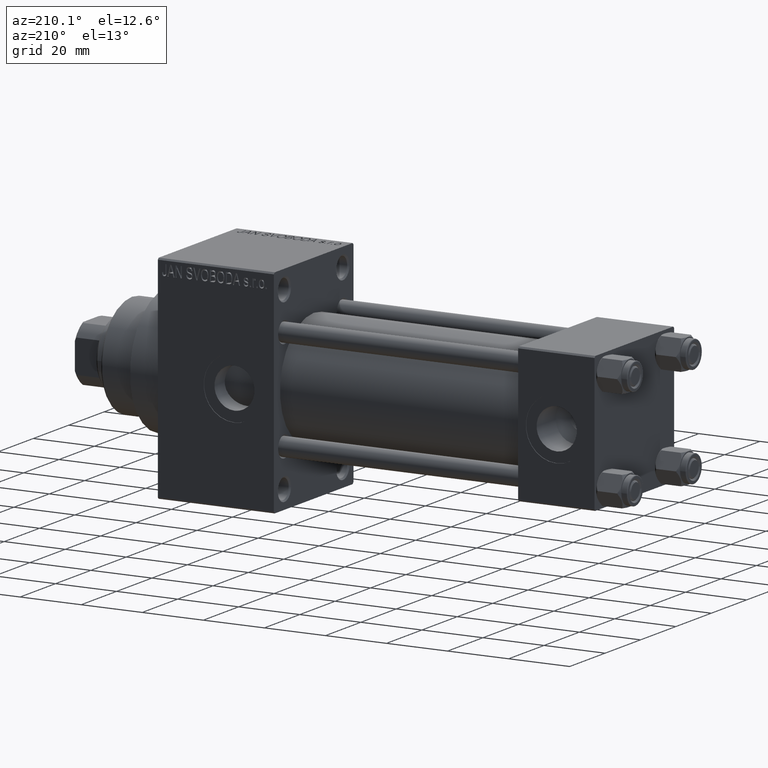
[diagram: clean part render]
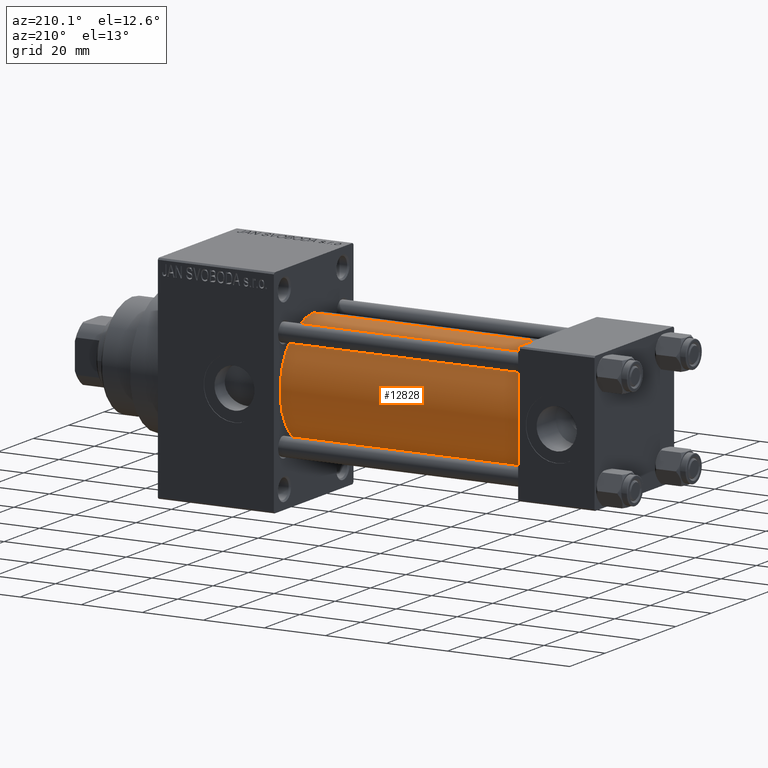
[diagram: same view with one face highlighted and labeled with its STEP entity id]
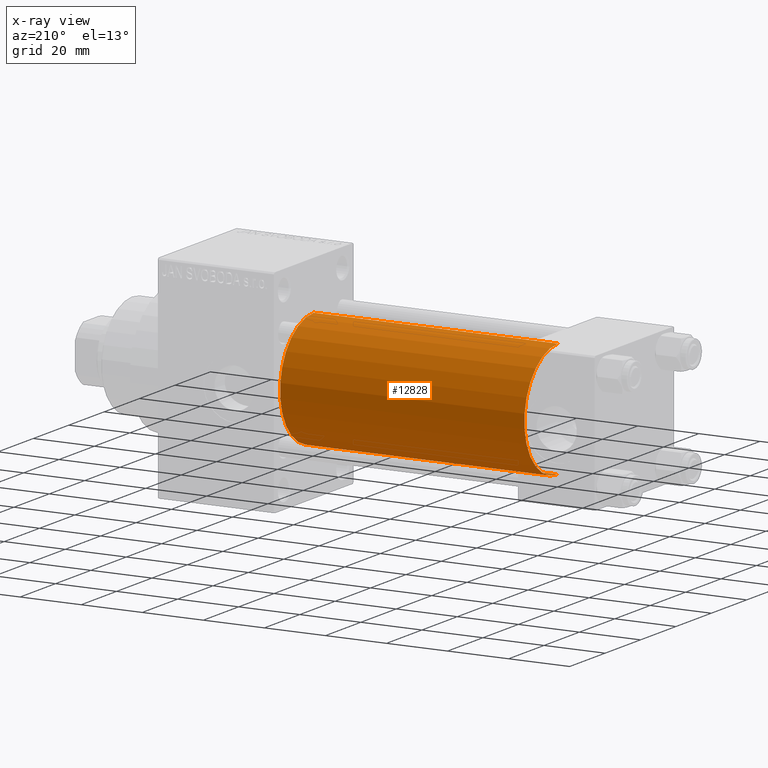
[diagram: x-ray of the same camera — body ghosted, the highlighted face saturated]
A machine part, auxiliary view. The second image highlights one B-rep face of the part: STEP entity #12828.
The next image is the same camera in x-ray: the body ghosted, the highlighted face saturated — about 0% of this face is hidden behind the body in this view.
In plain terms, the highlighted cylindrical surface (partial cylindrical patch) has radius 19 mm, axis along (-1, -0, -0).
Its self-contained STEP definition (entity closure, byte-faithful):
#2123 = FACE_OUTER_BOUND ( 'NONE', #23509, .T. ) ;
#3850 = CARTESIAN_POINT ( 'NONE',  ( 105.0000000000000142, -2.752562955852396712E-16, -19.00000000000000000 ) ) ;
#5522 = AXIS2_PLACEMENT_3D ( 'NONE', #40367, #32678, #9815 ) ;
#7876 = ORIENTED_EDGE ( 'NONE', *, *, #26660, .T. ) ;
#9019 = DIRECTION ( 'NONE',  ( 1.000000000000000000, -0.000000000000000000, 0.000000000000000000 ) ) ;
#9815 = DIRECTION ( 'NONE',  ( 0.000000000000000000, 0.000000000000000000, -1.000000000000000000 ) ) ;
#10241 = ORIENTED_EDGE ( 'NONE', *, *, #18253, .F. ) ;
#11860 = DIRECTION ( 'NONE',  ( -1.000000000000000000, -0.000000000000000000, -0.000000000000000000 ) ) ;
#12828 = ADVANCED_FACE ( 'NONE', ( #2123 ), #21763, .T. ) ;
#14110 = VERTEX_POINT ( 'NONE', #28419 ) ;
#14808 = CIRCLE ( 'NONE', #28276, 19.00000000000000000 ) ;
#15700 = CARTESIAN_POINT ( 'NONE',  ( 24.99999999999999289, -2.752562955852396712E-16, -19.00000000000000000 ) ) ;
#16016 = VERTEX_POINT ( 'NONE', #15700 ) ;
#17297 = VERTEX_POINT ( 'NONE', #30823 ) ;
#18253 = EDGE_CURVE ( 'NONE', #24774, #14110, #42024, .T. ) ;
#21007 = DIRECTION ( 'NONE',  ( 0.000000000000000000, 0.000000000000000000, 1.000000000000000000 ) ) ;
#21602 = VECTOR ( 'NONE', #11860, 1000.000000000000000 ) ;
#21763 = CYLINDRICAL_SURFACE ( 'NONE', #30439, 19.00000000000000000 ) ;
#21928 = ORIENTED_EDGE ( 'NONE', *, *, #27301, .F. ) ;
#23509 = EDGE_LOOP ( 'NONE', ( #10241, #7876, #43636, #21928 ) ) ;
#24745 = DIRECTION ( 'NONE',  ( -1.000000000000000000, -0.000000000000000000, -0.000000000000000000 ) ) ;
#24774 = VERTEX_POINT ( 'NONE', #3850 ) ;
#26660 = EDGE_CURVE ( 'NONE', #24774, #16016, #30770, .T. ) ;
#27301 = EDGE_CURVE ( 'NONE', #14110, #17297, #28474, .T. ) ;
#28141 = CARTESIAN_POINT ( 'NONE',  ( 24.99999999999999289, -2.602085213965210642E-15, 0.000000000000000000 ) ) ;
#28276 = AXIS2_PLACEMENT_3D ( 'NONE', #28141, #9019, #35109 ) ;
#28419 = CARTESIAN_POINT ( 'NONE',  ( 105.0000000000000142, -2.602085213965210642E-15, 19.00000000000000000 ) ) ;
#28474 = LINE ( 'NONE', #43629, #37495 ) ;
#30439 = AXIS2_PLACEMENT_3D ( 'NONE', #36417, #24745, #21007 ) ;
#30770 = LINE ( 'NONE', #45911, #21602 ) ;
#30823 = CARTESIAN_POINT ( 'NONE',  ( 24.99999999999999289, -2.602085213965210642E-15, 19.00000000000000000 ) ) ;
#32678 = DIRECTION ( 'NONE',  ( 1.000000000000000000, 0.000000000000000000, 0.000000000000000000 ) ) ;
#35109 = DIRECTION ( 'NONE',  ( 0.000000000000000000, 0.000000000000000000, 1.000000000000000000 ) ) ;
#36417 = CARTESIAN_POINT ( 'NONE',  ( 105.0000000000000142, -2.602085213965210642E-15, 0.000000000000000000 ) ) ;
#37495 = VECTOR ( 'NONE', #40659, 1000.000000000000000 ) ;
#40367 = CARTESIAN_POINT ( 'NONE',  ( 105.0000000000000142, -2.602085213965210642E-15, 0.000000000000000000 ) ) ;
#40659 = DIRECTION ( 'NONE',  ( -1.000000000000000000, -0.000000000000000000, -0.000000000000000000 ) ) ;
#41349 = EDGE_CURVE ( 'NONE', #16016, #17297, #14808, .T. ) ;
#42024 = CIRCLE ( 'NONE', #5522, 19.00000000000000000 ) ;
#43629 = CARTESIAN_POINT ( 'NONE',  ( 105.0000000000000142, -2.602085213965210642E-15, 19.00000000000000000 ) ) ;
#43636 = ORIENTED_EDGE ( 'NONE', *, *, #41349, .T. ) ;
#45911 = CARTESIAN_POINT ( 'NONE',  ( 105.0000000000000142, -2.752562955852396712E-16, -19.00000000000000000 ) ) ;